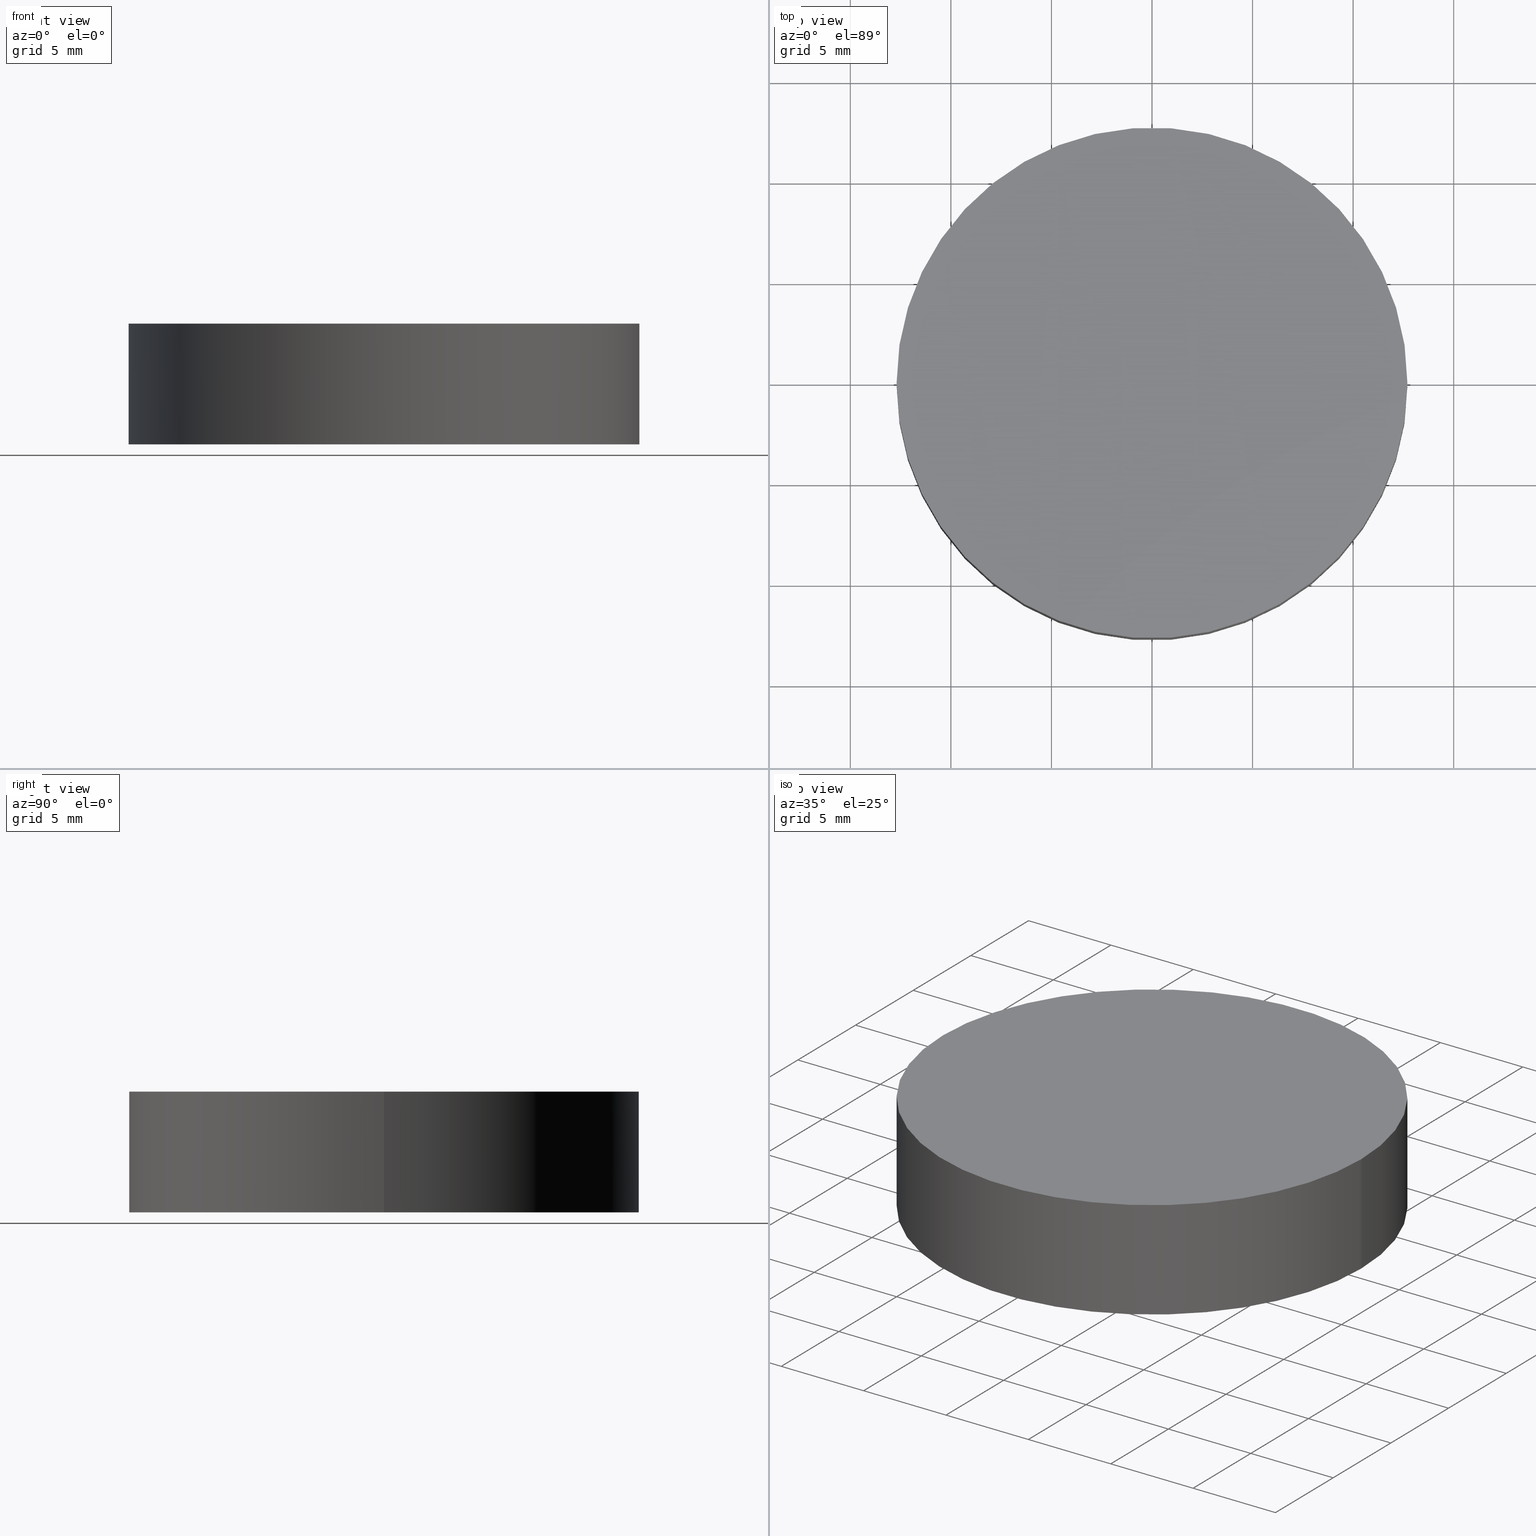
[diagram: canonical four-view strip — front | top / right | iso, engineering-drawing reading convention]
A machine part, canonical four-view strip (front | top / right | iso — engineering-drawing reading convention). The complete STEP part file that produces these views, byte-faithful:
ISO-10303-21;
HEADER;
FILE_DESCRIPTION (( 'STEP AP203' ),
    '1' );
FILE_NAME ('416006.STEP',
    '2019-08-21T06:49:45',
    ( '' ),
    ( '' ),
    'SwSTEP 2.0',
    'SolidWorks 2016',
    '' );
FILE_SCHEMA (( 'CONFIG_CONTROL_DESIGN' ));
ENDSEC;

DATA;
#1 = CALENDAR_DATE ( 2019, 21, 8 ) ;
#2 = CC_DESIGN_DATE_AND_TIME_ASSIGNMENT ( #198, #77, ( #173 ) ) ;
#3 = DIRECTION ( 'NONE',  ( 0.0000000000000000000, 0.0000000000000000000, 1.000000000000000000 ) ) ;
#4 = LOCAL_TIME ( 14, 49, 45.00000000000000000, #233 ) ;
#5 = CIRCLE ( 'NONE', #130, 12.69999999999999900 ) ;
#6 = DESIGN_CONTEXT ( 'detailed design', #62, 'design' ) ;
#7 = CARTESIAN_POINT ( 'NONE',  ( 0.0000000000000000000, 0.0000000000000000000, 6.000000000000000000 ) ) ;
#8 = EDGE_CURVE ( 'NONE', #253, #228, #176, .T. ) ;
#9 = PERSON_AND_ORGANIZATION ( #17, #95 ) ;
#10 = ORIENTED_EDGE ( 'NONE', *, *, #94, .T. ) ;
#11 = DIRECTION ( 'NONE',  ( 0.0000000000000000000, 0.0000000000000000000, 1.000000000000000000 ) ) ;
#12 =( NAMED_UNIT ( * ) PLANE_ANGLE_UNIT ( ) SI_UNIT ( $, .RADIAN. ) );
#13 = COORDINATED_UNIVERSAL_TIME_OFFSET ( 8, 0, .AHEAD. ) ;
#14 = VECTOR ( 'NONE', #218, 1000.000000000000000 ) ;
#15 = APPLICATION_CONTEXT ( 'configuration controlled 3d designs of mechanical parts and assemblies' ) ;
#16 = DATE_TIME_ROLE ( 'classification_date' ) ;
#17 = PERSON ( 'δָ��', 'δָ��', 'δָ��', ('δָ��'), ('δָ��'), ('δָ��') ) ;
#18 = SHAPE_DEFINITION_REPRESENTATION ( #158, #126 ) ;
#19 = ADVANCED_FACE ( 'NONE', ( #210 ), #34, .T. ) ;
#20 = LOCAL_TIME ( 14, 49, 45.00000000000000000, #13 ) ;
#21 = FACE_OUTER_BOUND ( 'NONE', #208, .T. ) ;
#22 = DESIGN_CONTEXT ( 'detailed design', #15, 'design' ) ;
#23 = CLOSED_SHELL ( 'NONE', ( #144, #19, #48, #251 ) ) ;
#24 = COORDINATED_UNIVERSAL_TIME_OFFSET ( 8, 0, .AHEAD. ) ;
#25 = CARTESIAN_POINT ( 'NONE',  ( 0.0000000000000000000, 0.0000000000000000000, 6.000000000000000000 ) ) ;
#26 = VECTOR ( 'NONE', #76, 1000.000000000000000 ) ;
#27 = DIRECTION ( 'NONE',  ( 1.000000000000000000, 0.0000000000000000000, 0.0000000000000000000 ) ) ;
#28 = CC_DESIGN_PERSON_AND_ORGANIZATION_ASSIGNMENT ( #160, #165, ( #156 ) ) ;
#29 = CARTESIAN_POINT ( 'NONE',  ( 0.0000000000000000000, 0.0000000000000000000, 0.0000000000000000000 ) ) ;
#30 = PERSON_AND_ORGANIZATION ( #17, #95 ) ;
#31 = PERSON_AND_ORGANIZATION_ROLE ( 'design_supplier' ) ;
#32 = APPROVAL_STATUS ( 'not_yet_approved' ) ;
#33 = PERSON_AND_ORGANIZATION ( #17, #95 ) ;
#34 = CYLINDRICAL_SURFACE ( 'NONE', #212, 12.69999999999999900 ) ;
#35 = COORDINATED_UNIVERSAL_TIME_OFFSET ( 8, 0, .AHEAD. ) ;
#36 = CC_DESIGN_PERSON_AND_ORGANIZATION_ASSIGNMENT ( #70, #66, ( #167 ) ) ;
#37 = AXIS2_PLACEMENT_3D ( 'NONE', #72, #65, #243 ) ;
#38 = PERSON_AND_ORGANIZATION ( #17, #95 ) ;
#39 = ORIENTED_EDGE ( 'NONE', *, *, #102, .T. ) ;
#40 = DIRECTION ( 'NONE',  ( 0.0000000000000000000, 0.0000000000000000000, 1.000000000000000000 ) ) ;
#41 = COORDINATED_UNIVERSAL_TIME_OFFSET ( 8, 0, .AHEAD. ) ;
#42 = APPLICATION_CONTEXT ( 'configuration controlled 3d designs of mechanical parts and assemblies' ) ;
#43 = PERSON_AND_ORGANIZATION_ROLE ( 'design_owner' ) ;
#44 = APPROVAL_ROLE ( '' ) ;
#45 = EDGE_CURVE ( 'NONE', #51, #216, #150, .T. ) ;
#46 = APPROVAL_PERSON_ORGANIZATION ( #230, #52, #100 ) ;
#47 = APPROVAL_ROLE ( '' ) ;
#48 = ADVANCED_FACE ( 'NONE', ( #186 ), #175, .T. ) ;
#49 = CC_DESIGN_APPROVAL ( #229, ( #171 ) ) ;
#50 = PERSON_AND_ORGANIZATION ( #17, #95 ) ;
#51 = VERTEX_POINT ( 'NONE', #112 ) ;
#52 = APPROVAL ( #135, 'δָ��' ) ;
#53 = LOCAL_TIME ( 14, 49, 45.00000000000000000, #249 ) ;
#54 = DATE_AND_TIME ( #93, #188 ) ;
#55 = EDGE_LOOP ( 'NONE', ( #246, #240 ) ) ;
#56 = CARTESIAN_POINT ( 'NONE',  ( 0.0000000000000000000, 0.0000000000000000000, 6.000000000000000000 ) ) ;
#57 = LINE ( 'NONE', #159, #26 ) ;
#58 = ORIENTED_EDGE ( 'NONE', *, *, #105, .T. ) ;
#59 = PLANE ( 'NONE',  #151 ) ;
#60 = MECHANICAL_CONTEXT ( 'NONE', #42, 'mechanical' ) ;
#61 = CC_DESIGN_PERSON_AND_ORGANIZATION_ASSIGNMENT ( #99, #101, ( #173 ) ) ;
#62 = APPLICATION_CONTEXT ( 'configuration controlled 3d designs of mechanical parts and assemblies' ) ;
#63 = COORDINATED_UNIVERSAL_TIME_OFFSET ( 8, 0, .AHEAD. ) ;
#64 = APPROVAL_PERSON_ORGANIZATION ( #220, #140, #225 ) ;
#65 = DIRECTION ( 'NONE',  ( -0.0000000000000000000, -0.0000000000000000000, -1.000000000000000000 ) ) ;
#66 = PERSON_AND_ORGANIZATION_ROLE ( 'creator' ) ;
#67 = LOCAL_TIME ( 14, 49, 45.00000000000000000, #118 ) ;
#68 = APPROVAL_PERSON_ORGANIZATION ( #154, #141, #44 ) ;
#69 = CC_DESIGN_APPROVAL ( #141, ( #211 ) ) ;
#70 = PERSON_AND_ORGANIZATION ( #17, #95 ) ;
#71 = ORIENTED_EDGE ( 'NONE', *, *, #45, .F. ) ;
#72 = CARTESIAN_POINT ( 'NONE',  ( 0.0000000000000000000, 0.0000000000000000000, 6.000000000000000000 ) ) ;
#73 = EDGE_CURVE ( 'NONE', #51, #228, #57, .T. ) ;
#74 = CARTESIAN_POINT ( 'NONE',  ( 0.0000000000000000000, 0.0000000000000000000, 0.0000000000000000000 ) ) ;
#75 = LOCAL_TIME ( 14, 49, 45.00000000000000000, #63 ) ;
#76 = DIRECTION ( 'NONE',  ( -0.0000000000000000000, -0.0000000000000000000, -1.000000000000000000 ) ) ;
#77 = DATE_TIME_ROLE ( 'classification_date' ) ;
#78 = LOCAL_TIME ( 14, 49, 45.00000000000000000, #83 ) ;
#79 = ORIENTED_EDGE ( 'NONE', *, *, #73, .F. ) ;
#80 = SECURITY_CLASSIFICATION_LEVEL ( 'unclassified' ) ;
#81 = DATE_AND_TIME ( #219, #4 ) ;
#82 = CC_DESIGN_APPROVAL ( #183, ( #156 ) ) ;
#83 = COORDINATED_UNIVERSAL_TIME_OFFSET ( 8, 0, .AHEAD. ) ;
#84 = ORIENTED_EDGE ( 'NONE', *, *, #73, .T. ) ;
#85 = DIRECTION ( 'NONE',  ( 0.0000000000000000000, 0.0000000000000000000, 1.000000000000000000 ) ) ;
#86 =( LENGTH_UNIT ( ) NAMED_UNIT ( * ) SI_UNIT ( .MILLI., .METRE. ) );
#87 = DATE_AND_TIME ( #252, #146 ) ;
#88 = ORIENTED_EDGE ( 'NONE', *, *, #8, .T. ) ;
#89 = CARTESIAN_POINT ( 'NONE',  ( 12.69999999999999900, 1.555301434917138400E-015, 0.0000000000000000000 ) ) ;
#90 = DIRECTION ( 'NONE',  ( 0.0000000000000000000, 0.0000000000000000000, 1.000000000000000000 ) ) ;
#91 = CC_DESIGN_PERSON_AND_ORGANIZATION_ASSIGNMENT ( #30, #205, ( #171 ) ) ;
#92 = CARTESIAN_POINT ( 'NONE',  ( 0.0000000000000000000, 0.0000000000000000000, 0.0000000000000000000 ) ) ;
#93 = CALENDAR_DATE ( 2019, 21, 8 ) ;
#94 = EDGE_CURVE ( 'NONE', #228, #253, #5, .T. ) ;
#95 = ORGANIZATION ( 'δָ��', 'δָ��', '' ) ;
#96 = PERSON_AND_ORGANIZATION_ROLE ( 'design_owner' ) ;
#97 = MECHANICAL_CONTEXT ( 'NONE', #119, 'mechanical' ) ;
#98 = CC_DESIGN_PERSON_AND_ORGANIZATION_ASSIGNMENT ( #169, #31, ( #211 ) ) ;
#99 = PERSON_AND_ORGANIZATION ( #17, #95 ) ;
#100 = APPROVAL_ROLE ( '' ) ;
#101 = PERSON_AND_ORGANIZATION_ROLE ( 'classification_officer' ) ;
#102 = EDGE_CURVE ( 'NONE', #216, #253, #238, .T. ) ;
#103 = PERSON_AND_ORGANIZATION ( #17, #95 ) ;
#104 = COORDINATED_UNIVERSAL_TIME_OFFSET ( 8, 0, .AHEAD. ) ;
#105 = EDGE_CURVE ( 'NONE', #216, #51, #148, .T. ) ;
#106 = PERSON_AND_ORGANIZATION ( #17, #95 ) ;
#107 = ORIENTED_EDGE ( 'NONE', *, *, #102, .F. ) ;
#108 = PRODUCT_RELATED_PRODUCT_CATEGORY ( 'detail', '', ( #224 ) ) ;
#109 = APPROVAL_DATE_TIME ( #168, #153 ) ;
#110 = CALENDAR_DATE ( 2019, 21, 8 ) ;
#111 = DIRECTION ( 'NONE',  ( 0.0000000000000000000, 0.0000000000000000000, 1.000000000000000000 ) ) ;
#112 = CARTESIAN_POINT ( 'NONE',  ( 12.69999999999999900, 1.555301434917138400E-015, 6.000000000000000000 ) ) ;
#113 = CC_DESIGN_DATE_AND_TIME_ASSIGNMENT ( #124, #16, ( #171 ) ) ;
#114 = DATE_AND_TIME ( #223, #78 ) ;
#115 = PRODUCT_RELATED_PRODUCT_CATEGORY ( 'detail', '', ( #248 ) ) ;
#116 = DIRECTION ( 'NONE',  ( 1.000000000000000000, 0.0000000000000000000, -0.0000000000000000000 ) ) ;
#117 = AXIS2_PLACEMENT_3D ( 'NONE', #157, #11, #221 ) ;
#118 = COORDINATED_UNIVERSAL_TIME_OFFSET ( 8, 0, .AHEAD. ) ;
#119 = APPLICATION_CONTEXT ( 'configuration controlled 3d designs of mechanical parts and assemblies' ) ;
#120 = APPLICATION_PROTOCOL_DEFINITION ( 'international standard', 'config_control_design', 1994, #15 ) ;
#121 = PERSON_AND_ORGANIZATION_ROLE ( 'creator' ) ;
#122 = AXIS2_PLACEMENT_3D ( 'NONE', #234, #3, #128 ) ;
#123 = LOCAL_TIME ( 14, 49, 45.00000000000000000, #41 ) ;
#124 = DATE_AND_TIME ( #181, #127 ) ;
#125 = EDGE_LOOP ( 'NONE', ( #79, #139, #39, #88 ) ) ;
#126 = ADVANCED_BREP_SHAPE_REPRESENTATION ( '416006', ( #244, #207 ), #136 ) ;
#127 = LOCAL_TIME ( 14, 49, 45.00000000000000000, #24 ) ;
#128 = DIRECTION ( 'NONE',  ( 1.000000000000000000, 0.0000000000000000000, 0.0000000000000000000 ) ) ;
#129 = CC_DESIGN_APPROVAL ( #140, ( #173 ) ) ;
#130 = AXIS2_PLACEMENT_3D ( 'NONE', #74, #90, #182 ) ;
#131 = DIRECTION ( 'NONE',  ( 1.000000000000000000, 0.0000000000000000000, 0.0000000000000000000 ) ) ;
#132 = APPROVAL_PERSON_ORGANIZATION ( #50, #153, #47 ) ;
#133 =( NAMED_UNIT ( * ) SI_UNIT ( $, .STERADIAN. ) SOLID_ANGLE_UNIT ( ) );
#134 = CC_DESIGN_APPROVAL ( #153, ( #167 ) ) ;
#135 = APPROVAL_STATUS ( 'not_yet_approved' ) ;
#136 =( GEOMETRIC_REPRESENTATION_CONTEXT ( 3 ) GLOBAL_UNCERTAINTY_ASSIGNED_CONTEXT ( ( #189 ) ) GLOBAL_UNIT_ASSIGNED_CONTEXT ( ( #86, #12, #133 ) ) REPRESENTATION_CONTEXT ( 'NONE', 'WORKASPACE' ) );
#137 = DATE_AND_TIME ( #1, #123 ) ;
#138 = PERSON_AND_ORGANIZATION_ROLE ( 'design_supplier' ) ;
#139 = ORIENTED_EDGE ( 'NONE', *, *, #105, .F. ) ;
#140 = APPROVAL ( #206, 'δָ��' ) ;
#141 = APPROVAL ( #32, 'δָ��' ) ;
#142 = FACE_OUTER_BOUND ( 'NONE', #55, .T. ) ;
#143 = CC_DESIGN_PERSON_AND_ORGANIZATION_ASSIGNMENT ( #9, #96, ( #224 ) ) ;
#144 = ADVANCED_FACE ( 'NONE', ( #21 ), #203, .T. ) ;
#145 = CC_DESIGN_SECURITY_CLASSIFICATION ( #171, ( #156 ) ) ;
#146 = LOCAL_TIME ( 14, 49, 45.00000000000000000, #104 ) ;
#147 = AXIS2_PLACEMENT_3D ( 'NONE', #92, #40, #131 ) ;
#148 = CIRCLE ( 'NONE', #117, 12.69999999999999900 ) ;
#149 = DATE_AND_TIME ( #209, #20 ) ;
#150 = CIRCLE ( 'NONE', #200, 12.69999999999999900 ) ;
#151 = AXIS2_PLACEMENT_3D ( 'NONE', #29, #196, #116 ) ;
#152 = DIRECTION ( 'NONE',  ( 1.000000000000000000, 0.0000000000000000000, 0.0000000000000000000 ) ) ;
#153 = APPROVAL ( #222, 'δָ��' ) ;
#154 = PERSON_AND_ORGANIZATION ( #17, #95 ) ;
#155 = CARTESIAN_POINT ( 'NONE',  ( -12.69999999999999900, 0.0000000000000000000, 6.000000000000000000 ) ) ;
#156 = PRODUCT_DEFINITION_FORMATION_WITH_SPECIFIED_SOURCE ( '�κ�', '', #224, .NOT_KNOWN. ) ;
#157 = CARTESIAN_POINT ( 'NONE',  ( 0.0000000000000000000, 0.0000000000000000000, 6.000000000000000000 ) ) ;
#158 = PRODUCT_DEFINITION_SHAPE ( 'NONE', 'NONE',  #167 ) ;
#159 = CARTESIAN_POINT ( 'NONE',  ( 12.69999999999999900, 1.555301434917138400E-015, 6.000000000000000000 ) ) ;
#160 = PERSON_AND_ORGANIZATION ( #17, #95 ) ;
#161 = CC_DESIGN_SECURITY_CLASSIFICATION ( #173, ( #211 ) ) ;
#162 = DATE_TIME_ROLE ( 'creation_date' ) ;
#163 = AXIS2_PLACEMENT_3D ( 'NONE', #56, #85, #236 ) ;
#164 = APPROVAL_DATE_TIME ( #114, #141 ) ;
#165 = PERSON_AND_ORGANIZATION_ROLE ( 'creator' ) ;
#166 = APPROVAL_ROLE ( '' ) ;
#167 = PRODUCT_DEFINITION ( 'δ֪', '', #156, #22 ) ;
#168 = DATE_AND_TIME ( #202, #75 ) ;
#169 = PERSON_AND_ORGANIZATION ( #17, #95 ) ;
#170 = CC_DESIGN_APPROVAL ( #52, ( #232 ) ) ;
#171 = SECURITY_CLASSIFICATION ( '', '', #80 ) ;
#172 = APPROVAL_PERSON_ORGANIZATION ( #227, #229, #166 ) ;
#173 = SECURITY_CLASSIFICATION ( '', '', #185 ) ;
#174 = PRODUCT_DEFINITION_SHAPE ( 'NONE', 'NONE',  #232 ) ;
#175 = PLANE ( 'NONE',  #163 ) ;
#176 = CIRCLE ( 'NONE', #122, 12.69999999999999900 ) ;
#177 = APPROVAL_DATE_TIME ( #239, #229 ) ;
#178 = CC_DESIGN_PERSON_AND_ORGANIZATION_ASSIGNMENT ( #38, #43, ( #248 ) ) ;
#179 = DIRECTION ( 'NONE',  ( 0.0000000000000000000, 0.0000000000000000000, 1.000000000000000000 ) ) ;
#180 = APPLICATION_PROTOCOL_DEFINITION ( 'international standard', 'config_control_design', 1994, #42 ) ;
#181 = CALENDAR_DATE ( 2019, 21, 8 ) ;
#182 = DIRECTION ( 'NONE',  ( 1.000000000000000000, 0.0000000000000000000, 0.0000000000000000000 ) ) ;
#183 = APPROVAL ( #250, 'δָ��' ) ;
#184 = CC_DESIGN_PERSON_AND_ORGANIZATION_ASSIGNMENT ( #191, #226, ( #232 ) ) ;
#185 = SECURITY_CLASSIFICATION_LEVEL ( 'unclassified' ) ;
#186 = FACE_OUTER_BOUND ( 'NONE', #193, .T. ) ;
#187 = APPROVAL_ROLE ( '' ) ;
#188 = LOCAL_TIME ( 14, 49, 45.00000000000000000, #35 ) ;
#189 = UNCERTAINTY_MEASURE_WITH_UNIT (LENGTH_MEASURE( 1.000000000000000100E-005 ), #86, 'distance_accuracy_value', 'NONE');
#190 = CC_DESIGN_DATE_AND_TIME_ASSIGNMENT ( #149, #247, ( #167 ) ) ;
#191 = PERSON_AND_ORGANIZATION ( #17, #95 ) ;
#192 = APPROVAL_DATE_TIME ( #54, #140 ) ;
#193 = EDGE_LOOP ( 'NONE', ( #58, #214 ) ) ;
#194 = CC_DESIGN_DATE_AND_TIME_ASSIGNMENT ( #137, #162, ( #232 ) ) ;
#195 = APPROVAL_DATE_TIME ( #87, #52 ) ;
#196 = DIRECTION ( 'NONE',  ( 0.0000000000000000000, 0.0000000000000000000, 1.000000000000000000 ) ) ;
#197 = CARTESIAN_POINT ( 'NONE',  ( -12.69999999999999900, 0.0000000000000000000, 6.000000000000000000 ) ) ;
#198 = DATE_AND_TIME ( #110, #53 ) ;
#199 = APPLICATION_PROTOCOL_DEFINITION ( 'international standard', 'config_control_design', 1994, #62 ) ;
#200 = AXIS2_PLACEMENT_3D ( 'NONE', #25, #111, #152 ) ;
#201 = CARTESIAN_POINT ( 'NONE',  ( -12.69999999999999900, 0.0000000000000000000, 0.0000000000000000000 ) ) ;
#202 = CALENDAR_DATE ( 2019, 21, 8 ) ;
#203 = CYLINDRICAL_SURFACE ( 'NONE', #37, 12.69999999999999900 ) ;
#204 = APPROVAL_STATUS ( 'not_yet_approved' ) ;
#205 = PERSON_AND_ORGANIZATION_ROLE ( 'classification_officer' ) ;
#206 = APPROVAL_STATUS ( 'not_yet_approved' ) ;
#207 = AXIS2_PLACEMENT_3D ( 'NONE', #217, #179, #27 ) ;
#208 = EDGE_LOOP ( 'NONE', ( #71, #84, #10, #107 ) ) ;
#209 = CALENDAR_DATE ( 2019, 21, 8 ) ;
#210 = FACE_OUTER_BOUND ( 'NONE', #125, .T. ) ;
#211 = PRODUCT_DEFINITION_FORMATION_WITH_SPECIFIED_SOURCE ( '�κ�', '', #248, .NOT_KNOWN. ) ;
#212 = AXIS2_PLACEMENT_3D ( 'NONE', #7, #215, #237 ) ;
#213 = APPROVAL_PERSON_ORGANIZATION ( #33, #183, #187 ) ;
#214 = ORIENTED_EDGE ( 'NONE', *, *, #45, .T. ) ;
#215 = DIRECTION ( 'NONE',  ( -0.0000000000000000000, -0.0000000000000000000, -1.000000000000000000 ) ) ;
#216 = VERTEX_POINT ( 'NONE', #197 ) ;
#217 = CARTESIAN_POINT ( 'NONE',  ( 0.0000000000000000000, 0.0000000000000000000, 0.0000000000000000000 ) ) ;
#218 = DIRECTION ( 'NONE',  ( -0.0000000000000000000, -0.0000000000000000000, -1.000000000000000000 ) ) ;
#219 = CALENDAR_DATE ( 2019, 21, 8 ) ;
#220 = PERSON_AND_ORGANIZATION ( #17, #95 ) ;
#221 = DIRECTION ( 'NONE',  ( 1.000000000000000000, 0.0000000000000000000, 0.0000000000000000000 ) ) ;
#222 = APPROVAL_STATUS ( 'not_yet_approved' ) ;
#223 = CALENDAR_DATE ( 2019, 21, 8 ) ;
#224 = PRODUCT ( '416006', '416006', '', ( #97 ) ) ;
#225 = APPROVAL_ROLE ( '' ) ;
#226 = PERSON_AND_ORGANIZATION_ROLE ( 'creator' ) ;
#227 = PERSON_AND_ORGANIZATION ( #17, #95 ) ;
#228 = VERTEX_POINT ( 'NONE', #89 ) ;
#229 = APPROVAL ( #204, 'δָ��' ) ;
#230 = PERSON_AND_ORGANIZATION ( #17, #95 ) ;
#231 = CALENDAR_DATE ( 2019, 21, 8 ) ;
#232 = PRODUCT_DEFINITION ( 'δ֪', '', #211, #6 ) ;
#233 = COORDINATED_UNIVERSAL_TIME_OFFSET ( 8, 0, .AHEAD. ) ;
#234 = CARTESIAN_POINT ( 'NONE',  ( 0.0000000000000000000, 0.0000000000000000000, 0.0000000000000000000 ) ) ;
#235 = CC_DESIGN_PERSON_AND_ORGANIZATION_ASSIGNMENT ( #103, #138, ( #156 ) ) ;
#236 = DIRECTION ( 'NONE',  ( 1.000000000000000000, 0.0000000000000000000, -0.0000000000000000000 ) ) ;
#237 = DIRECTION ( 'NONE',  ( -1.000000000000000000, 0.0000000000000000000, 0.0000000000000000000 ) ) ;
#238 = LINE ( 'NONE', #155, #14 ) ;
#239 = DATE_AND_TIME ( #231, #67 ) ;
#240 = ORIENTED_EDGE ( 'NONE', *, *, #94, .F. ) ;
#241 = CC_DESIGN_PERSON_AND_ORGANIZATION_ASSIGNMENT ( #106, #121, ( #211 ) ) ;
#242 = APPROVAL_DATE_TIME ( #81, #183 ) ;
#243 = DIRECTION ( 'NONE',  ( -1.000000000000000000, 0.0000000000000000000, 0.0000000000000000000 ) ) ;
#244 = MANIFOLD_SOLID_BREP ( '͹̨-����1', #23 ) ;
#245 = APPLICATION_PROTOCOL_DEFINITION ( 'international standard', 'config_control_design', 1994, #119 ) ;
#246 = ORIENTED_EDGE ( 'NONE', *, *, #8, .F. ) ;
#247 = DATE_TIME_ROLE ( 'creation_date' ) ;
#248 = PRODUCT ( '416006', '416006', '', ( #60 ) ) ;
#249 = COORDINATED_UNIVERSAL_TIME_OFFSET ( 8, 0, .AHEAD. ) ;
#250 = APPROVAL_STATUS ( 'not_yet_approved' ) ;
#251 = ADVANCED_FACE ( 'NONE', ( #142 ), #59, .F. ) ;
#252 = CALENDAR_DATE ( 2019, 21, 8 ) ;
#253 = VERTEX_POINT ( 'NONE', #201 ) ;
ENDSEC;
END-ISO-10303-21;
